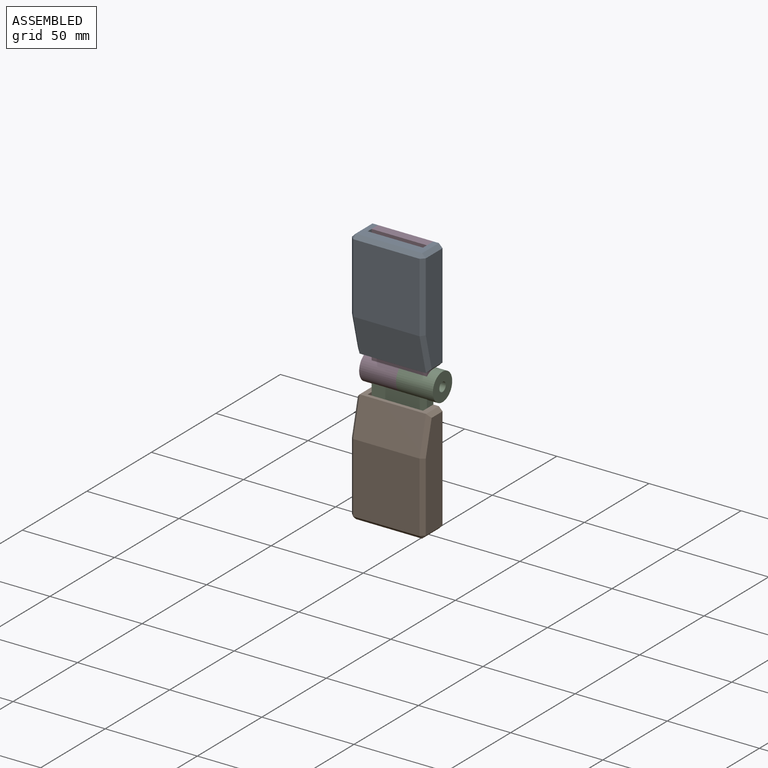
[diagram: assembled view]
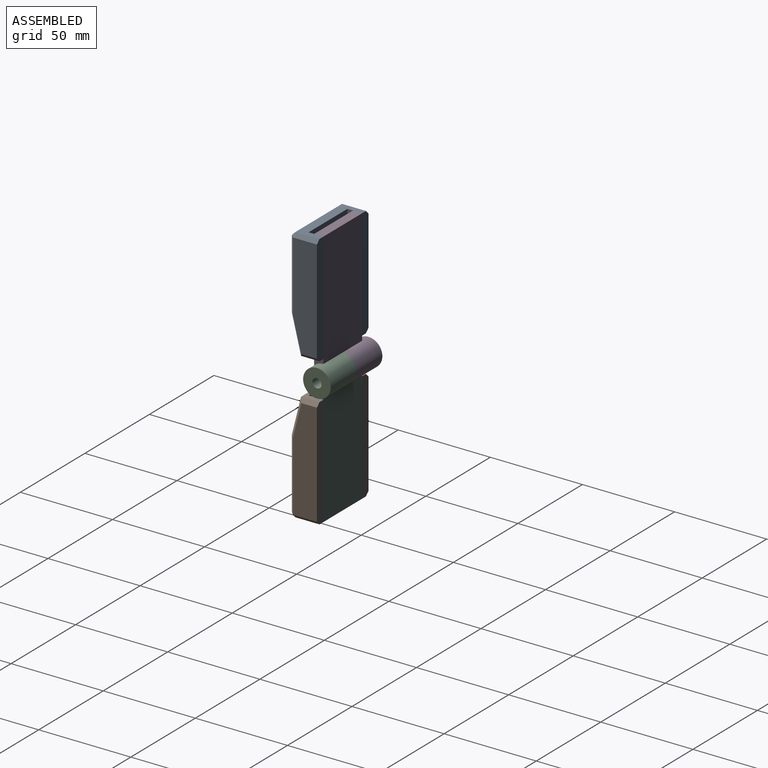
[diagram: assembled view, second angle]
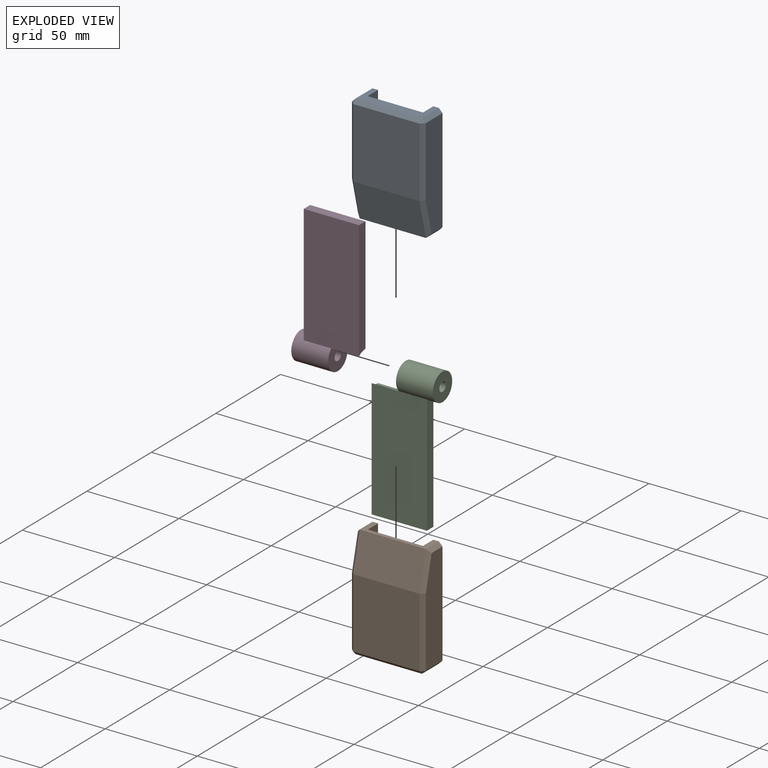
[diagram: exploded view]
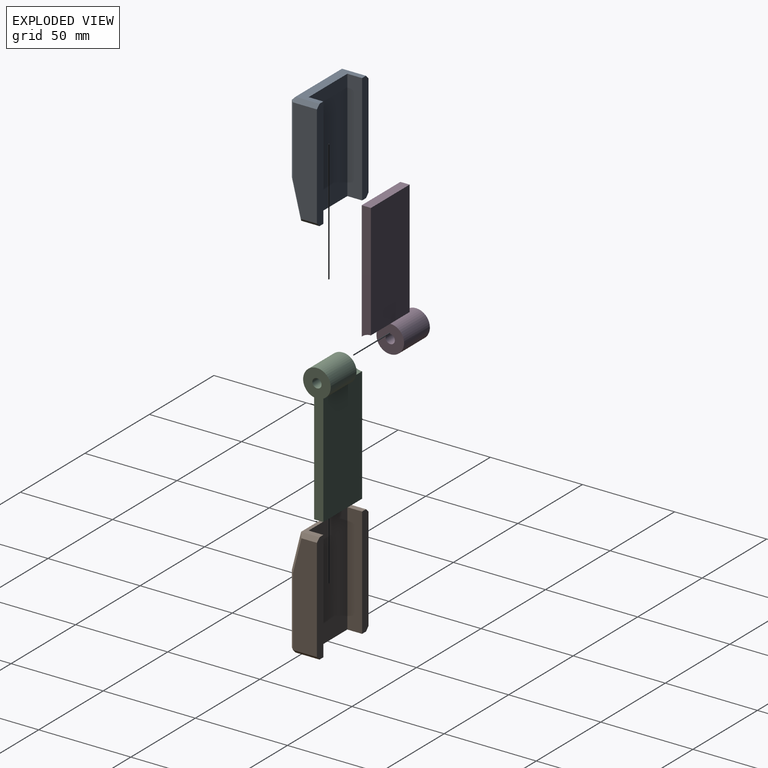
[diagram: exploded view, second angle]
ASSEMBLY  parts=4 mates=3
PART A: 22 faces, bbox 40x15x60 mm
  f0: plane 36x13mm, normal (0,0,-1), area 228mm2, adj f2,f6,f7,f8,f9,f15,f19,f21
  f1: plane 36x10mm, normal (0,0,1), area 120mm2, adj f2,f6,f7,f8,f9,f10,f11,f13
  f2: plane 60x5mm, normal (0,1,0), area 296mm2, adj f0,f1,f4,f7,f11,f15
  f3: plane 56x13mm, normal (-1,0,0), area 686.4mm2, adj f6,f13,f16,f18,f21
  f4: plane 56x13mm, normal (1,0,0), area 686.4mm2, adj f2,f11,f12,f14,f15
  f5: plane 38x36mm, normal (0,-1,0), area 1368mm2, adj f10,f14,f18,f19
  f6: plane 60x5mm, normal (0,1,0), area 296mm2, adj f0,f1,f3,f8,f13,f21
  f7: plane 60x8mm, normal (-1,0,0), area 480mm2, adj f0,f1,f2,f9
  f8: plane 60x8mm, normal (1,0,0), area 480mm2, adj f0,f1,f6,f9
  f9: plane 60x30mm, normal (0,1,0), area 1800mm2, adj f0,f1,f7,f8
  f10: plane 36x20mm, normal (0,-0.97,0.24), area 742.2mm2, adj f1,f5,f12,f16
  f11: plane 10x2mm, normal (0.71,0,0.71), area 26.1mm2, adj f1,f2,f4,f12
  f12: plane 20.25x6.56mm, normal (0.71,-0.69,0.17), area 55.8mm2, adj f4,f10,f11,f14
  f13: plane 10x2mm, normal (-0.71,0,0.71), area 26.1mm2, adj f1,f3,f6,f16
  f14: plane 38x2mm, normal (0.71,-0.71,0), area 107.1mm2, adj f4,f5,f12,f17
  f15: plane 13x2mm, normal (0.71,0,-0.71), area 36.8mm2, adj f0,f2,f4,f17
  f16: plane 20.25x6.56mm, normal (-0.71,-0.69,0.17), area 55.8mm2, adj f3,f10,f13,f18
  f17: plane 2x2mm, normal (0.58,-0.58,-0.58), area 3.5mm2, adj f14,f15,f19
  f18: plane 38x2mm, normal (-0.71,-0.71,0), area 107.1mm2, adj f3,f5,f16,f20
  f19: plane 36x2mm, normal (0,-0.71,-0.71), area 101.8mm2, adj f0,f5,f17,f20
  f20: plane 2x2mm, normal (-0.58,-0.58,-0.58), area 3.5mm2, adj f18,f19,f21
  f21: plane 13x2mm, normal (-0.71,0,-0.71), area 36.8mm2, adj f0,f3,f6,f20
PART B: same geometry as A
PART C: 10 faces, bbox 35x15x77.5 mm
  f0: cylinder r=7.5mm len=15mm, axis (-1,0,0), area 82.1mm2, adj f1,f3,f5,f9
  f1: plane 64.41x30mm, normal (0,-1,0), area 1932.3mm2, adj f0,f2,f4,f5,f7
  f2: plane 30x5mm, normal (0,0,-1), area 150mm2, adj f1,f3,f4,f5
  f3: plane 62.5x30mm, normal (0,1,0), area 1875mm2, adj f0,f2,f4,f5,f7
  f4: plane 64.41x5mm, normal (1,0,0), area 315.5mm2, adj f1,f2,f3,f7
  f5: plane 64.41x5mm, normal (-1,0,0), area 315.5mm2, adj f0,f1,f2,f3
  f6: cylinder r=2.5mm len=20mm, axis (-1,0,0), area 314.2mm2, adj f8,f9
  f7: cylinder r=7.5mm len=20mm, axis (-1,0,0), area 860.4mm2, adj f1,f3,f4,f8,f9
  f8: plane 15x15mm, normal (1,0,0), area 157.1mm2, adj f6,f7
  f9: plane 15x15mm, normal (-1,0,0), area 157.1mm2, adj f0,f6,f7
PART D: same geometry as C
PLACE A rot(axis=(0,-1,0),180deg) t=(-2.3,-6.61,27.7)mm
PLACE B t=(-2.3,-6.61,7.7)mm
PLACE C t=(-2.3,-6.61,7.7)mm
PLACE D rot(axis=(0,1,0),180deg) t=(-2.3,-6.61,27.7)mm
MATE revolute D.f7 <-> C.f6  axis (1,0,0) through (-2.3,-6.61,17.7)mm
MATE fastened A.f0 <-> D.f2  axis (0,0,1) through (-17.3,-6.61,87.7)mm
MATE fastened B.f0 <-> C.f2  axis (0,0,-1) through (12.7,-6.61,-52.3)mm
